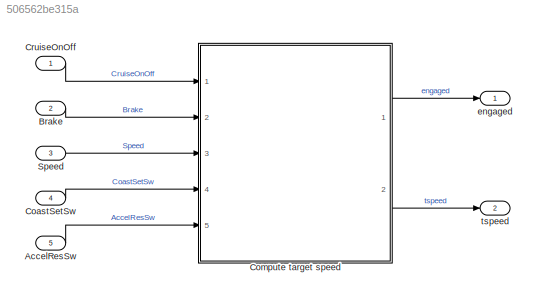
MODEL slx_506562be315a
KIND model
CONFIG AbsTol = auto
CONFIG EnableMultiTasking = on
CONFIG FixedStep = 0.1
CONFIG MaxStep = auto
CONFIG MinStep = auto
CONFIG RelTol = 1e-3
CONFIG SampleTimeConstraint = Unconstrained
CONFIG SolverName = FixedStepDiscrete
CONFIG StartTime = 0.0
CONFIG StopTime = 16
BLOCK [Inport] AccelResSw
  Port = 5
  PortDimensions = 1
  SamplingMode = Sample based
  SignalType = real
BLOCK [Inport] Brake
  Port = 2
  PortDimensions = 1
  SamplingMode = Sample based
  SignalType = real
BLOCK [Inport] CoastSetSw
  Port = 4
  PortDimensions = 1
  SamplingMode = Sample based
  SignalType = real
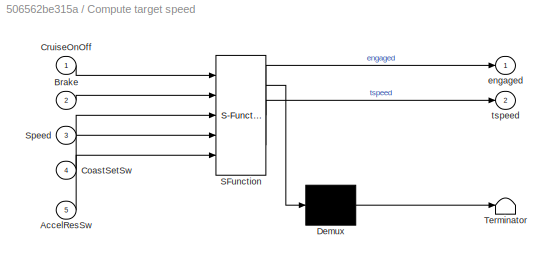
BLOCK [SubSystem] Compute target speed
  ErrorFcn = Stateflow.Translate.translate
  PermitHierarchicalResolution = ExplicitOnly
  Ports = [5, 2]
  RequestExecContextInheritance = off
  SFBlockType = Chart
  TreatAsAtomicUnit = on
BLOCK [Demux] Compute target speed/ Demux 
  Outputs = 1
  Ports = [1, 1]
BLOCK [S-Function] Compute target speed/ SFunction 
  EnableBusSupport = on
  FunctionName = sf_sfun
  Parameters = holdrate,incdec,maxtspeed,mintspeed
  PortCounts = [5 3]
  Ports = [5, 3]
  SFcnIsStateOwnerBlock = off
  SFunctionDeploymentMode = off
  Tag = Stateflow S-Function 1
BLOCK [Terminator] Compute target speed/ Terminator 
BLOCK [Inport] Compute target speed/AccelResSw
  Port = 5
BLOCK [Inport] Compute target speed/Brake
  Port = 2
BLOCK [Inport] Compute target speed/CoastSetSw
  Port = 4
BLOCK [Inport] Compute target speed/CruiseOnOff
BLOCK [Inport] Compute target speed/Speed
  Port = 3
BLOCK [Outport] Compute target speed/engaged
  VectorParamsAs1DForOutWhenUnconnected = off
BLOCK [Outport] Compute target speed/tspeed
  Port = 2
  VectorParamsAs1DForOutWhenUnconnected = off
BLOCK [Inport] CruiseOnOff
  PortDimensions = 1
  SamplingMode = Sample based
  SignalType = real
BLOCK [Inport] Speed
  Port = 3
  PortDimensions = 1
  SamplingMode = Sample based
  SignalType = real
BLOCK [Outport] engaged
  VectorParamsAs1DForOutWhenUnconnected = off
BLOCK [Outport] tspeed
  Port = 2
  VectorParamsAs1DForOutWhenUnconnected = off
LINE AccelResSw:1 -> Compute target speed:5
LINE Brake:1 -> Compute target speed:2
LINE CoastSetSw:1 -> Compute target speed:4
LINE Compute target speed:1 -> engaged:1
LINE Compute target speed:2 -> tspeed:1
LINE CruiseOnOff:1 -> Compute target speed:1
LINE Speed:1 -> Compute target speed:3
CHART Compute target speed states=7 transitions=23
  STATE_LABEL 'OFF\n\nen:\nengaged = false;\ntspeed = 0;\n'
  STATE_LABEL 'CRUISE'
  STATE_LABEL 'ON\nen: engaged = true;'
  STATE_LABEL 'Accel\n\nentry: tspeed = tspeed + incdec; '
  STATE_LABEL 'Steady\n  '
  STATE_LABEL 'Coast\n\nentry: tspeed = tspeed - incdec;  '
  STATE_LABEL '[after(10/holdrate...\n*incdec,tick)]'
  STATE_LABEL '[hasChangedTo(AccelResSw,true) ...\n&& tspeed < maxtspeed]'
  STATE_LABEL '[!AccelResSw || ...\ntspeed > maxtspeed]'
  STATE_LABEL '[hasChangedTo(CoastSetSw,true)]'
  STATE_LABEL '{tspeed = Speed;}'
  STATE_LABEL '[hasChangedTo(CoastSetSw,true) ...\n&& tspeed > mintspeed]'
  STATE_LABEL '[!CoastSetSw || ...\ntspeed < mintspeed]'
  STATE_LABEL '[after(10/holdrate...\n*incdec,tick)]'
  STATE_LABEL 'STANDBY\n\nen:\nengaged=false;\n'
  STATE_LABEL '[Brake||Speed> maxtspeed||Speed<mintspeed]'
  STATE_LABEL '[~Brake && ...\nSpeed<=maxtspeed && ... \nSpeed>=mintspeed]'
  STATE_LABEL '[hasChangedTo(AccelResSw,true)...\n&&tspeed!=0]'
  STATE_LABEL ' [hasChangedTo(CoastSetSw,true)]'
  STATE_LABEL 'ON\nen: engaged = true;'
  STATE_LABEL 'Accel\n\nentry: tspeed = tspeed + incdec; '
  STATE_LABEL 'Steady\n  '
  STATE_LABEL 'Coast\n\nentry: tspeed = tspeed - incdec;  '
  STATE_LABEL '[after(10/holdrate...\n*incdec,tick)]'
  STATE_LABEL '[hasChangedTo(AccelResSw,true) ...\n&& tspeed < maxtspeed]'
  STATE_LABEL '[!AccelResSw || ...\ntspeed > maxtspeed]'
  STATE_LABEL '[hasChangedTo(CoastSetSw,true)]'
  STATE_LABEL '{tspeed = Speed;}'
  STATE_LABEL '[hasChangedTo(CoastSetSw,true) ...\n&& tspeed > mintspeed]'
  STATE_LABEL '[!CoastSetSw || ...\ntspeed < mintspeed]'
  STATE_LABEL '[after(10/holdrate...\n*incdec,tick)]'
  STATE_LABEL 'Accel\n\nentry: tspeed = tspeed + incdec; '
  STATE_LABEL 'Steady\n  '
  STATE_LABEL 'Coast\n\nentry: tspeed = tspeed - incdec;  '
  STATE_LABEL 'STANDBY\n\nen:\nengaged=false;\n'
CHART  states=0 transitions=0
